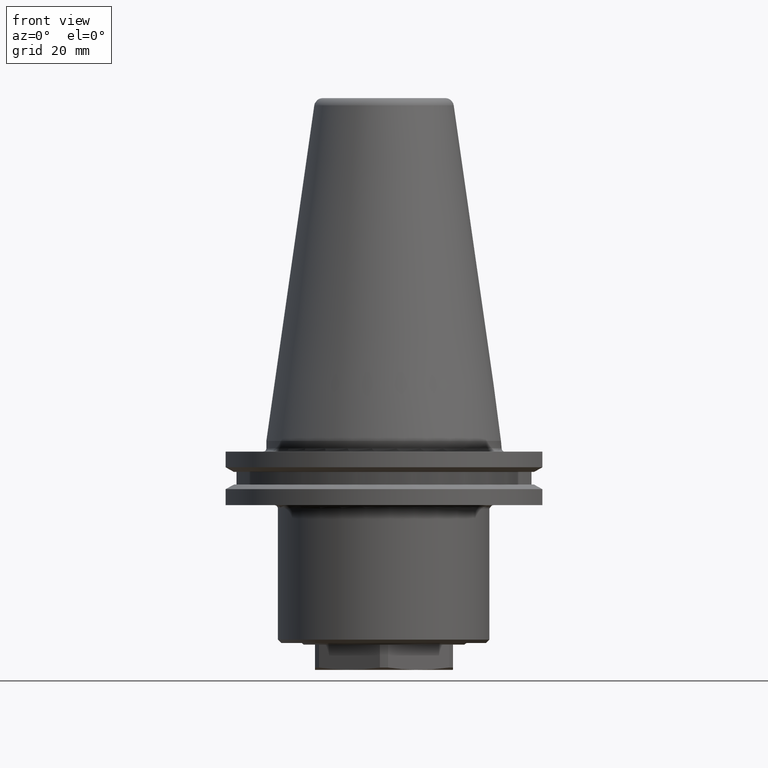
[diagram: clean part render]
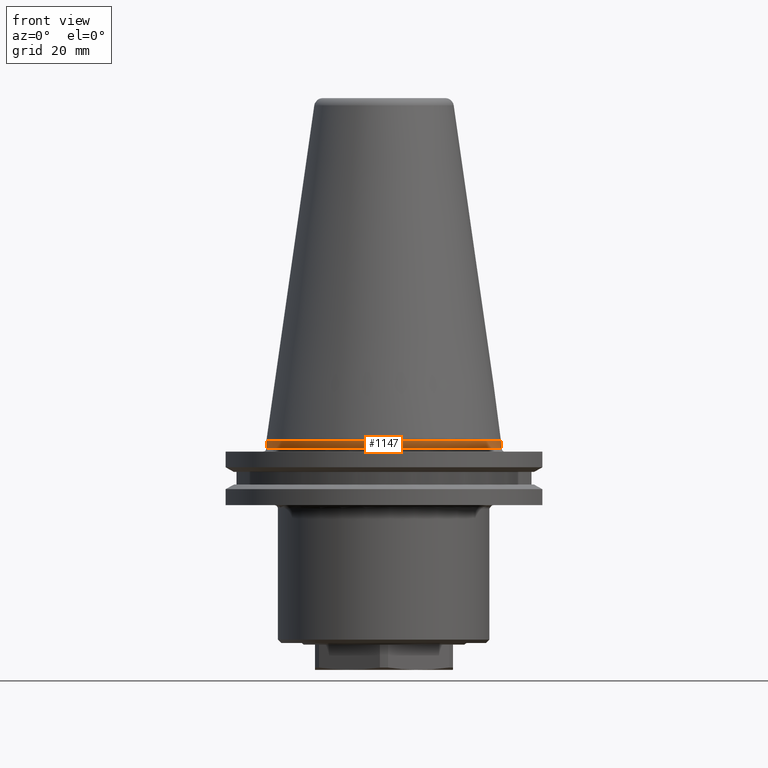
[diagram: same view with one face highlighted and labeled with its STEP entity id]
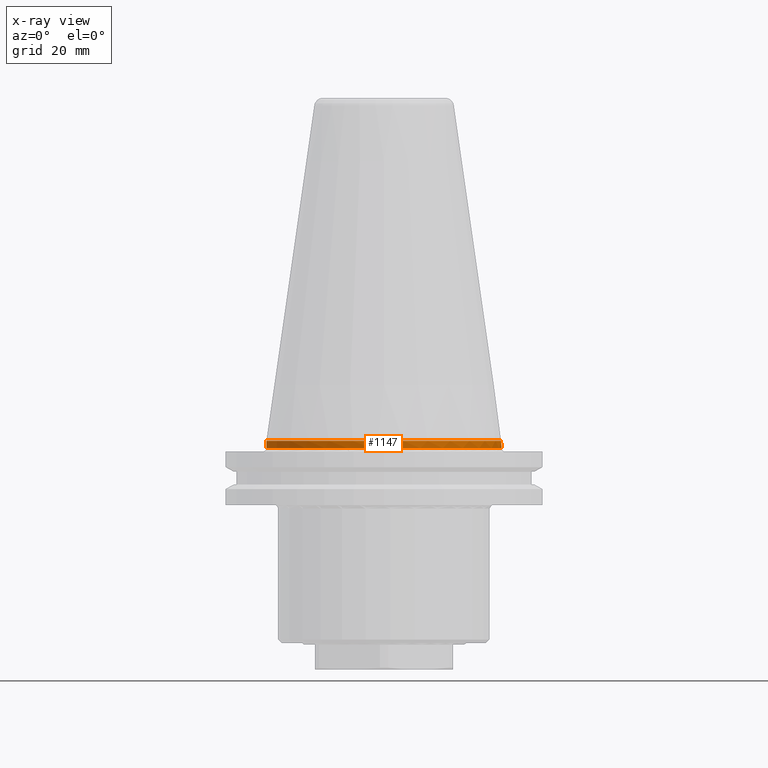
[diagram: x-ray of the same camera — body ghosted, the highlighted face saturated]
A machine part, front view. The second image highlights one B-rep face of the part: STEP entity #1147.
The next image is the same camera in x-ray: the body ghosted, the highlighted face saturated — about 0% of this face is hidden behind the body in this view.
In plain terms, the highlighted cylindrical surface (bore or boss wall) has radius 34.925 mm, axis along (0, 0, -1).
Its self-contained STEP definition (entity closure, byte-faithful):
#33=CYLINDRICAL_SURFACE('',#1249,34.925);
#352=ORIENTED_EDGE('',*,*,#630,.T.);
#353=ORIENTED_EDGE('',*,*,#631,.T.);
#630=EDGE_CURVE('',#779,#779,#878,.T.);
#631=EDGE_CURVE('',#780,#780,#879,.T.);
#779=VERTEX_POINT('',#1902);
#780=VERTEX_POINT('',#1904);
#878=CIRCLE('',#1250,34.925);
#879=CIRCLE('',#1251,34.925);
#944=EDGE_LOOP('',(#352));
#945=EDGE_LOOP('',(#353));
#1033=FACE_BOUND('',#944,.T.);
#1034=FACE_BOUND('',#945,.T.);
#1147=ADVANCED_FACE('',(#1033,#1034),#33,.T.);
#1249=AXIS2_PLACEMENT_3D('',#1900,#1438,#1439);
#1250=AXIS2_PLACEMENT_3D('',#1901,#1440,#1441);
#1251=AXIS2_PLACEMENT_3D('',#1903,#1442,#1443);
#1438=DIRECTION('',(0.,2.22044604925031E-16,-1.));
#1439=DIRECTION('',(-1.,0.,0.));
#1440=DIRECTION('',(0.,-2.22044604925031E-16,1.));
#1441=DIRECTION('',(1.,0.,0.));
#1442=DIRECTION('',(0.,2.22044604925031E-16,-1.));
#1443=DIRECTION('',(-1.,0.,0.));
#1900=CARTESIAN_POINT('',(0.,1.33226762955019E-14,-60.));
#1901=CARTESIAN_POINT('',(0.,4.88498130835069E-16,-2.2));
#1902=CARTESIAN_POINT('',(34.925,4.88498130835069E-16,-2.2));
#1903=CARTESIAN_POINT('',(0.,0.,0.));
#1904=CARTESIAN_POINT('',(-34.925,0.,0.));